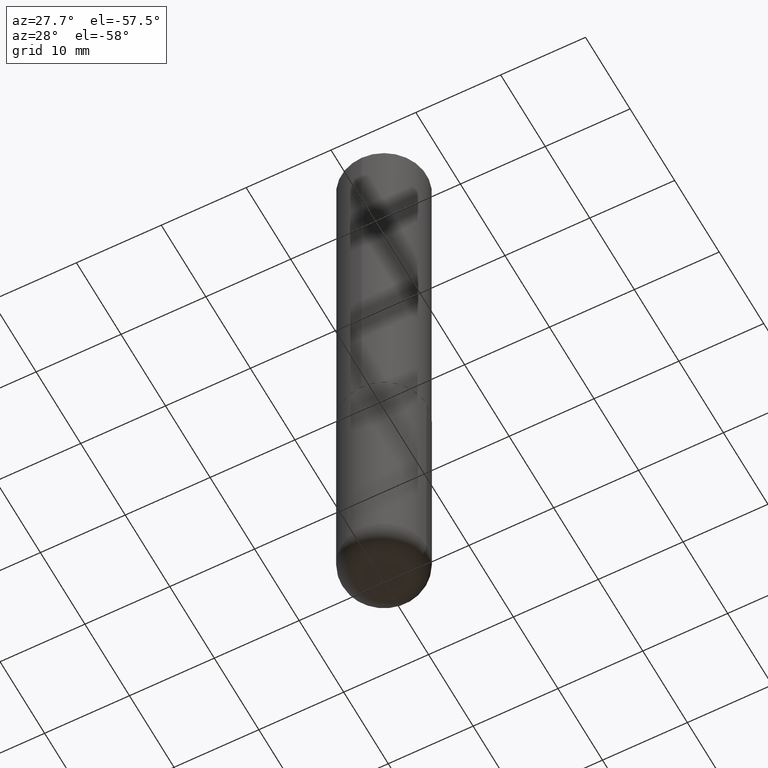
[diagram: clean part render]
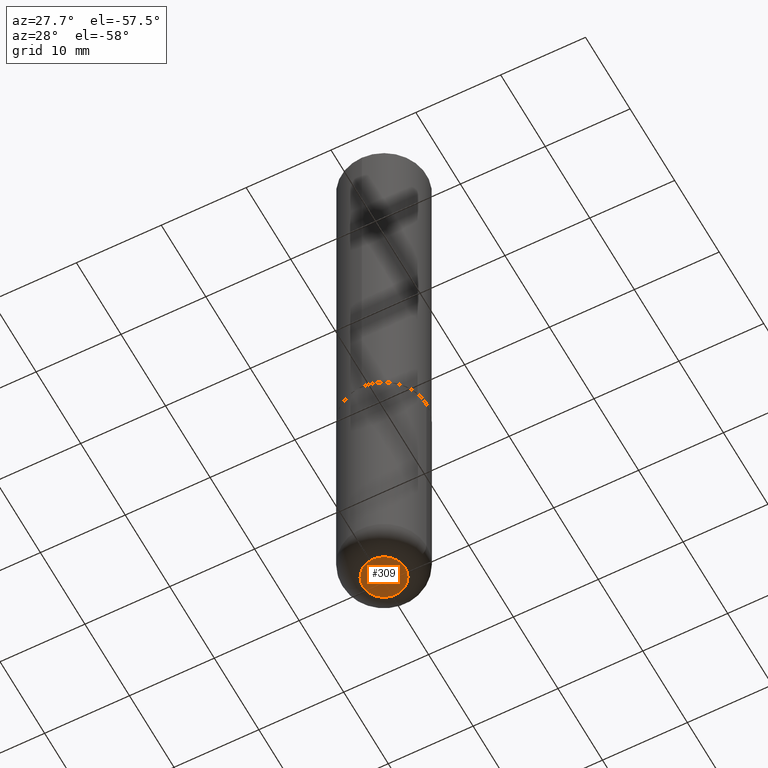
[diagram: same view with one face highlighted and labeled with its STEP entity id]
A machine part, auxiliary view. The second image highlights one B-rep face of the part: STEP entity #309.
In plain terms, the highlighted planar face has unit normal (0, -0, -1).
Its self-contained STEP definition (entity closure, byte-faithful):
#30 = AXIS2_PLACEMENT_3D ( 'NONE', #76, #175, #180 ) ;
#32 = CARTESIAN_POINT ( 'NONE',  ( 7.220980290903472425E-29, -1.030964609733604011E-14, -2.952800000000000313 ) ) ;
#50 = AXIS2_PLACEMENT_3D ( 'NONE', #312, #415, #344 ) ;
#76 = CARTESIAN_POINT ( 'NONE',  ( -4.222142515148722183E-29, -2.669684925770544192E-14, -2.952800000000000313 ) ) ;
#90 = AXIS2_PLACEMENT_3D ( 'NONE', #32, #195, #190 ) ;
#105 = CARTESIAN_POINT ( 'NONE',  ( 0.09845000000000002360, -1.099711877295425424E-14, -2.952800000000000313 ) ) ;
#110 = ORIENTED_EDGE ( 'NONE', *, *, #221, .F. ) ;
#143 = ORIENTED_EDGE ( 'NONE', *, *, #206, .F. ) ;
#171 = EDGE_LOOP ( 'NONE', ( #143, #110 ) ) ;
#175 = DIRECTION ( 'NONE',  ( 2.438088387897960049E-29, -3.491481338843145188E-15, -1.000000000000000000 ) ) ;
#180 = DIRECTION ( 'NONE',  ( -1.000000000000000000, 6.982962677686265922E-15, -4.876176775795935793E-29 ) ) ;
#181 = VERTEX_POINT ( 'NONE', #185 ) ;
#185 = CARTESIAN_POINT ( 'NONE',  ( -0.09845000000000002360, -9.088748866115164767E-15, -2.952800000000000313 ) ) ;
#190 = DIRECTION ( 'NONE',  ( 1.000000000000000000, -6.982962677686273021E-15, 0.000000000000000000 ) ) ;
#195 = DIRECTION ( 'NONE',  ( -2.445468806185136597E-29, 3.491481338843145583E-15, 1.000000000000000000 ) ) ;
#206 = EDGE_CURVE ( 'NONE', #339, #181, #266, .T. ) ;
#221 = EDGE_CURVE ( 'NONE', #181, #339, #251, .T. ) ;
#236 = FACE_OUTER_BOUND ( 'NONE', #171, .T. ) ;
#251 = CIRCLE ( 'NONE', #90, 0.09845000000000002360 ) ;
#266 = CIRCLE ( 'NONE', #50, 0.09845000000000002360 ) ;
#309 = ADVANCED_FACE ( 'NONE', ( #236 ), #329, .T. ) ;
#312 = CARTESIAN_POINT ( 'NONE',  ( 7.220980290903472425E-29, -1.030964609733604011E-14, -2.952800000000000313 ) ) ;
#329 = PLANE ( 'NONE',  #30 ) ;
#339 = VERTEX_POINT ( 'NONE', #105 ) ;
#344 = DIRECTION ( 'NONE',  ( 1.000000000000000000, -6.982962677686273021E-15, 0.000000000000000000 ) ) ;
#415 = DIRECTION ( 'NONE',  ( -2.445468806185136597E-29, 3.491481338843145583E-15, 1.000000000000000000 ) ) ;